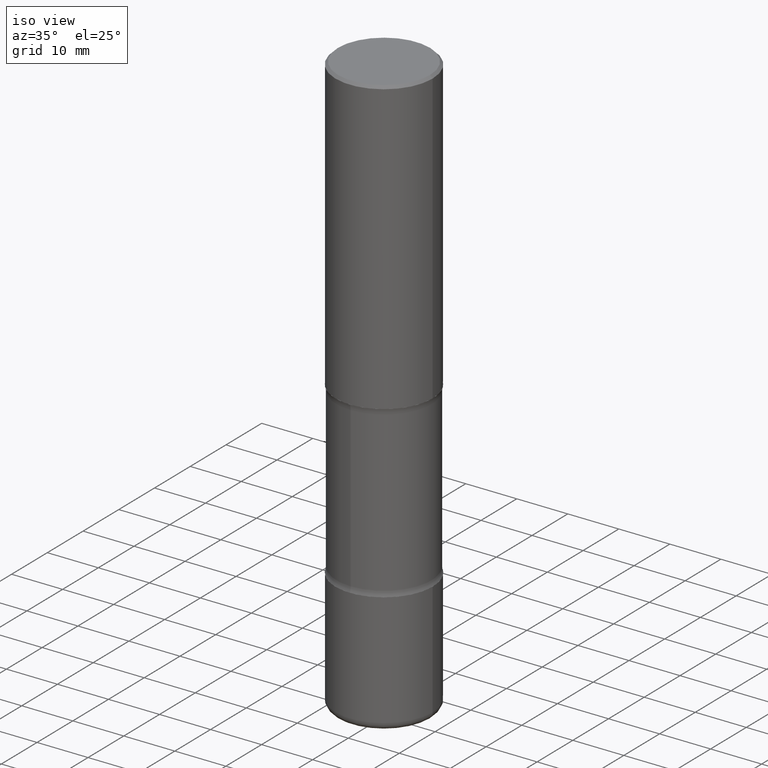
[diagram: clean part render]
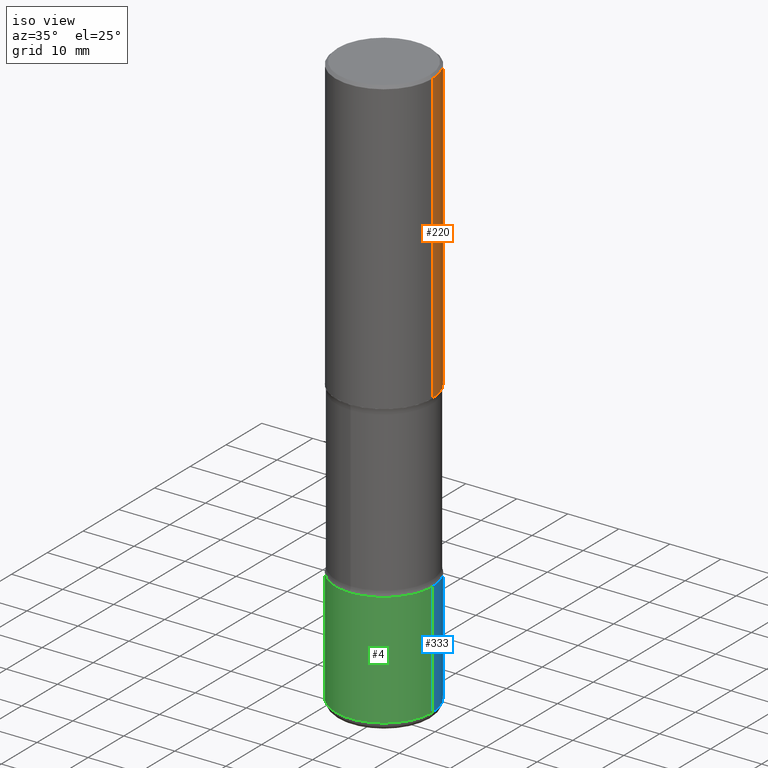
[diagram: same view with three faces highlighted in distinct colors, each labeled with its STEP entity id]
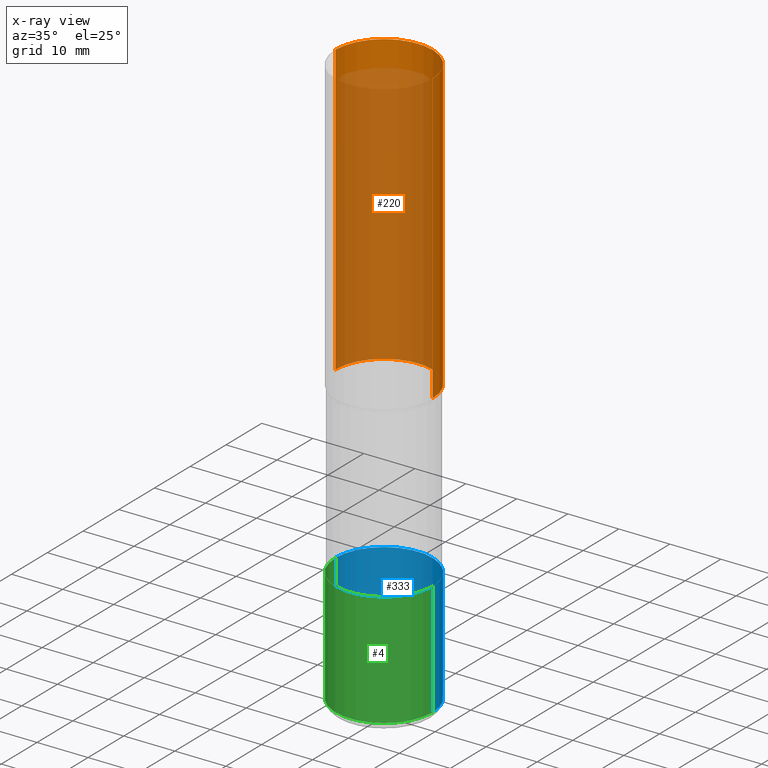
[diagram: x-ray of the same camera — body ghosted, the three highlighted faces saturated]
A machine part, iso view with three faces highlighted in distinct colors.
The next image is the same camera in x-ray (body ghosted, the three faces saturated) — at least one of them is partly hidden behind the body in this view.
Their STEP definitions:

[orange] entity #220 — the highlighted cylindrical surface (partial cylindrical patch) has radius 9.525 mm, axis along (-0, 0, 1).
#1 = EDGE_CURVE ( 'NONE', #60, #247, #345, .T. ) ;
#2 = VERTEX_POINT ( 'NONE', #480 ) ;
#13 = CARTESIAN_POINT ( 'NONE',  ( 0.000000000000000000, 0.000000000000000000, 0.000000000000000000 ) ) ;
#18 = VECTOR ( 'NONE', #451, 39.37007874015748143 ) ;
#24 = VERTEX_POINT ( 'NONE', #240 ) ;
#28 = CARTESIAN_POINT ( 'NONE',  ( 5.502304813916557343E-29, -7.855833012397078448E-15, -2.250000000000000000 ) ) ;
#48 = DIRECTION ( 'NONE',  ( 1.000000000000000000, -6.982962677686265922E-15, 0.000000000000000000 ) ) ;
#60 = VERTEX_POINT ( 'NONE', #412 ) ;
#109 = CARTESIAN_POINT ( 'NONE',  ( -0.3750000000000003886, 2.548781377355489085E-15, -0.02000000000000013572 ) ) ;
#138 = DIRECTION ( 'NONE',  ( -2.445468806185136877E-29, 3.491481338843145188E-15, 1.000000000000000000 ) ) ;
#161 = ORIENTED_EDGE ( 'NONE', *, *, #308, .T. ) ;
#165 = DIRECTION ( 'NONE',  ( -2.445468806185136597E-29, 3.491481338843145583E-15, 1.000000000000000000 ) ) ;
#186 = CARTESIAN_POINT ( 'NONE',  ( 4.890937612370306439E-31, -6.982962677686338448E-17, -0.02000000000000013572 ) ) ;
#192 = CARTESIAN_POINT ( 'NONE',  ( 0.3750000000000004996, -2.618611004132353566E-15, 1.828566290923478445E-29 ) ) ;
#212 = EDGE_CURVE ( 'NONE', #24, #2, #369, .T. ) ;
#220 = ADVANCED_FACE ( 'NONE', ( #527 ), #274, .T. ) ;
#240 = CARTESIAN_POINT ( 'NONE',  ( 0.3750000000000005551, -1.047444401652943162E-14, -2.250000000000000000 ) ) ;
#247 = VERTEX_POINT ( 'NONE', #109 ) ;
#274 = CYLINDRICAL_SURFACE ( 'NONE', #402, 0.3750000000000004996 ) ;
#278 = CIRCLE ( 'NONE', #367, 0.3750000000000005551 ) ;
#298 = ORIENTED_EDGE ( 'NONE', *, *, #392, .F. ) ;
#308 = EDGE_CURVE ( 'NONE', #24, #60, #278, .T. ) ;
#314 = DIRECTION ( 'NONE',  ( -2.445468806185136597E-29, 3.491481338843145583E-15, 1.000000000000000000 ) ) ;
#318 = DIRECTION ( 'NONE',  ( 1.000000000000000000, -6.982962677686266711E-15, 4.876176775795935793E-29 ) ) ;
#326 = DIRECTION ( 'NONE',  ( 1.000000000000000000, -6.982962677686265922E-15, 0.000000000000000000 ) ) ;
#345 = LINE ( 'NONE', #477, #545 ) ;
#367 = AXIS2_PLACEMENT_3D ( 'NONE', #28, #165, #326 ) ;
#369 = LINE ( 'NONE', #192, #18 ) ;
#372 = CIRCLE ( 'NONE', #380, 0.3750000000000003886 ) ;
#380 = AXIS2_PLACEMENT_3D ( 'NONE', #186, #314, #48 ) ;
#392 = EDGE_CURVE ( 'NONE', #2, #247, #372, .T. ) ;
#402 = AXIS2_PLACEMENT_3D ( 'NONE', #13, #535, #318 ) ;
#412 = CARTESIAN_POINT ( 'NONE',  ( -0.3750000000000005551, -1.298296060486588865E-15, -2.250000000000000000 ) ) ;
#423 = ORIENTED_EDGE ( 'NONE', *, *, #1, .T. ) ;
#442 = EDGE_LOOP ( 'NONE', ( #161, #423, #298, #515 ) ) ;
#451 = DIRECTION ( 'NONE',  ( -2.445468806185136877E-29, 3.491481338843145188E-15, 1.000000000000000000 ) ) ;
#477 = CARTESIAN_POINT ( 'NONE',  ( -0.3750000000000004996, 2.664535259100379247E-15, -1.844600658845592120E-29 ) ) ;
#480 = CARTESIAN_POINT ( 'NONE',  ( 0.3750000000000003886, -2.642516375941190395E-15, -0.02000000000000013572 ) ) ;
#515 = ORIENTED_EDGE ( 'NONE', *, *, #212, .F. ) ;
#527 = FACE_OUTER_BOUND ( 'NONE', #442, .T. ) ;
#535 = DIRECTION ( 'NONE',  ( -2.445468806185136597E-29, 3.491481338843145583E-15, 1.000000000000000000 ) ) ;
#545 = VECTOR ( 'NONE', #138, 39.37007874015748143 ) ;

[blue] entity #333 — the highlighted cylindrical surface (partial cylindrical patch) has radius 9.525 mm, axis along (-0, 0, 1).
#6 = AXIS2_PLACEMENT_3D ( 'NONE', #176, #523, #94 ) ;
#7 = CIRCLE ( 'NONE', #175, 0.3750000000000001665 ) ;
#8 = VERTEX_POINT ( 'NONE', #444 ) ;
#62 = CARTESIAN_POINT ( 'NONE',  ( 8.713205356437641927E-29, -1.244014801029812826E-14, -3.563000000000000167 ) ) ;
#67 = CYLINDRICAL_SURFACE ( 'NONE', #269, 0.3750000000000001110 ) ;
#94 = DIRECTION ( 'NONE',  ( 1.000000000000000000, -6.982962677686260400E-15, 0.000000000000000000 ) ) ;
#101 = ORIENTED_EDGE ( 'NONE', *, *, #142, .T. ) ;
#142 = EDGE_CURVE ( 'NONE', #173, #295, #366, .T. ) ;
#156 = CARTESIAN_POINT ( 'NONE',  ( -0.3750000000000001110, -1.283764188536319288E-14, -4.440000000000000391 ) ) ;
#173 = VERTEX_POINT ( 'NONE', #239 ) ;
#175 = AXIS2_PLACEMENT_3D ( 'NONE', #62, #525, #188 ) ;
#176 = CARTESIAN_POINT ( 'NONE',  ( 1.085788149946200766E-28, -1.550217714446357016E-14, -4.440000000000000391 ) ) ;
#188 = DIRECTION ( 'NONE',  ( 1.000000000000000000, -6.982962677686264344E-15, 0.000000000000000000 ) ) ;
#199 = CARTESIAN_POINT ( 'NONE',  ( 0.000000000000000000, 0.000000000000000000, 0.000000000000000000 ) ) ;
#205 = DIRECTION ( 'NONE',  ( -2.445468806185136877E-29, 3.491481338843145188E-15, 1.000000000000000000 ) ) ;
#239 = CARTESIAN_POINT ( 'NONE',  ( 0.3750000000000001110, -1.812078814859591702E-14, -4.440000000000000391 ) ) ;
#269 = AXIS2_PLACEMENT_3D ( 'NONE', #199, #457, #332 ) ;
#281 = ORIENTED_EDGE ( 'NONE', *, *, #340, .T. ) ;
#295 = VERTEX_POINT ( 'NONE', #156 ) ;
#316 = EDGE_CURVE ( 'NONE', #173, #8, #416, .T. ) ;
#329 = LINE ( 'NONE', #460, #403 ) ;
#332 = DIRECTION ( 'NONE',  ( 1.000000000000000000, -6.982962677686265922E-15, 4.876176775795935793E-29 ) ) ;
#333 = ADVANCED_FACE ( 'NONE', ( #335 ), #67, .T. ) ;
#335 = FACE_OUTER_BOUND ( 'NONE', #386, .T. ) ;
#340 = EDGE_CURVE ( 'NONE', #295, #470, #329, .T. ) ;
#347 = ORIENTED_EDGE ( 'NONE', *, *, #316, .F. ) ;
#366 = CIRCLE ( 'NONE', #6, 0.3750000000000001110 ) ;
#371 = DIRECTION ( 'NONE',  ( -2.445468806185136877E-29, 3.491481338843145188E-15, 1.000000000000000000 ) ) ;
#386 = EDGE_LOOP ( 'NONE', ( #101, #281, #434, #347 ) ) ;
#403 = VECTOR ( 'NONE', #205, 39.37007874015748143 ) ;
#416 = LINE ( 'NONE', #504, #546 ) ;
#420 = CARTESIAN_POINT ( 'NONE',  ( -0.3750000000000001665, -1.130662731828047193E-14, -3.563000000000000167 ) ) ;
#434 = ORIENTED_EDGE ( 'NONE', *, *, #441, .F. ) ;
#441 = EDGE_CURVE ( 'NONE', #8, #470, #7, .T. ) ;
#444 = CARTESIAN_POINT ( 'NONE',  ( 0.3750000000000001665, -1.505875901443047827E-14, -3.563000000000000167 ) ) ;
#457 = DIRECTION ( 'NONE',  ( -2.445468806185136597E-29, 3.491481338843145583E-15, 1.000000000000000000 ) ) ;
#460 = CARTESIAN_POINT ( 'NONE',  ( -0.3750000000000001110, 2.664535259100376486E-15, -1.844600658845590159E-29 ) ) ;
#470 = VERTEX_POINT ( 'NONE', #420 ) ;
#504 = CARTESIAN_POINT ( 'NONE',  ( 0.3750000000000001110, -2.618611004132350411E-15, 1.828566290923476483E-29 ) ) ;
#523 = DIRECTION ( 'NONE',  ( -2.445468806185136597E-29, 3.491481338843145583E-15, 1.000000000000000000 ) ) ;
#525 = DIRECTION ( 'NONE',  ( -2.445468806185136597E-29, 3.491481338843145583E-15, 1.000000000000000000 ) ) ;
#546 = VECTOR ( 'NONE', #371, 39.37007874015748143 ) ;

[green] entity #4 — the highlighted cylindrical surface (partial cylindrical patch) has radius 9.525 mm, axis along (-0, 0, 1).
#4 = ADVANCED_FACE ( 'NONE', ( #91 ), #187, .T. ) ;
#8 = VERTEX_POINT ( 'NONE', #444 ) ;
#84 = CIRCLE ( 'NONE', #268, 0.3750000000000001665 ) ;
#86 = AXIS2_PLACEMENT_3D ( 'NONE', #331, #285, #327 ) ;
#91 = FACE_OUTER_BOUND ( 'NONE', #290, .T. ) ;
#156 = CARTESIAN_POINT ( 'NONE',  ( -0.3750000000000001110, -1.283764188536319288E-14, -4.440000000000000391 ) ) ;
#166 = ORIENTED_EDGE ( 'NONE', *, *, #501, .T. ) ;
#173 = VERTEX_POINT ( 'NONE', #239 ) ;
#187 = CYLINDRICAL_SURFACE ( 'NONE', #421, 0.3750000000000001110 ) ;
#197 = EDGE_CURVE ( 'NONE', #470, #8, #84, .T. ) ;
#205 = DIRECTION ( 'NONE',  ( -2.445468806185136877E-29, 3.491481338843145188E-15, 1.000000000000000000 ) ) ;
#228 = ORIENTED_EDGE ( 'NONE', *, *, #197, .F. ) ;
#230 = CARTESIAN_POINT ( 'NONE',  ( 8.713205356437641927E-29, -1.244014801029812826E-14, -3.563000000000000167 ) ) ;
#239 = CARTESIAN_POINT ( 'NONE',  ( 0.3750000000000001110, -1.812078814859591702E-14, -4.440000000000000391 ) ) ;
#265 = ORIENTED_EDGE ( 'NONE', *, *, #340, .F. ) ;
#268 = AXIS2_PLACEMENT_3D ( 'NONE', #230, #397, #407 ) ;
#284 = DIRECTION ( 'NONE',  ( 1.000000000000000000, -6.982962677686265922E-15, 4.876176775795935793E-29 ) ) ;
#285 = DIRECTION ( 'NONE',  ( -2.445468806185136597E-29, 3.491481338843145583E-15, 1.000000000000000000 ) ) ;
#290 = EDGE_LOOP ( 'NONE', ( #265, #166, #556, #228 ) ) ;
#295 = VERTEX_POINT ( 'NONE', #156 ) ;
#316 = EDGE_CURVE ( 'NONE', #173, #8, #416, .T. ) ;
#327 = DIRECTION ( 'NONE',  ( 1.000000000000000000, -6.982962677686260400E-15, 0.000000000000000000 ) ) ;
#329 = LINE ( 'NONE', #460, #403 ) ;
#331 = CARTESIAN_POINT ( 'NONE',  ( 1.085788149946200766E-28, -1.550217714446357016E-14, -4.440000000000000391 ) ) ;
#340 = EDGE_CURVE ( 'NONE', #295, #470, #329, .T. ) ;
#363 = DIRECTION ( 'NONE',  ( -2.445468806185136597E-29, 3.491481338843145583E-15, 1.000000000000000000 ) ) ;
#371 = DIRECTION ( 'NONE',  ( -2.445468806185136877E-29, 3.491481338843145188E-15, 1.000000000000000000 ) ) ;
#397 = DIRECTION ( 'NONE',  ( -2.445468806185136597E-29, 3.491481338843145583E-15, 1.000000000000000000 ) ) ;
#403 = VECTOR ( 'NONE', #205, 39.37007874015748143 ) ;
#407 = DIRECTION ( 'NONE',  ( 1.000000000000000000, -6.982962677686264344E-15, 0.000000000000000000 ) ) ;
#416 = LINE ( 'NONE', #504, #546 ) ;
#420 = CARTESIAN_POINT ( 'NONE',  ( -0.3750000000000001665, -1.130662731828047193E-14, -3.563000000000000167 ) ) ;
#421 = AXIS2_PLACEMENT_3D ( 'NONE', #502, #363, #284 ) ;
#444 = CARTESIAN_POINT ( 'NONE',  ( 0.3750000000000001665, -1.505875901443047827E-14, -3.563000000000000167 ) ) ;
#455 = CIRCLE ( 'NONE', #86, 0.3750000000000001110 ) ;
#460 = CARTESIAN_POINT ( 'NONE',  ( -0.3750000000000001110, 2.664535259100376486E-15, -1.844600658845590159E-29 ) ) ;
#470 = VERTEX_POINT ( 'NONE', #420 ) ;
#501 = EDGE_CURVE ( 'NONE', #295, #173, #455, .T. ) ;
#502 = CARTESIAN_POINT ( 'NONE',  ( 0.000000000000000000, 0.000000000000000000, 0.000000000000000000 ) ) ;
#504 = CARTESIAN_POINT ( 'NONE',  ( 0.3750000000000001110, -2.618611004132350411E-15, 1.828566290923476483E-29 ) ) ;
#546 = VECTOR ( 'NONE', #371, 39.37007874015748143 ) ;
#556 = ORIENTED_EDGE ( 'NONE', *, *, #316, .T. ) ;